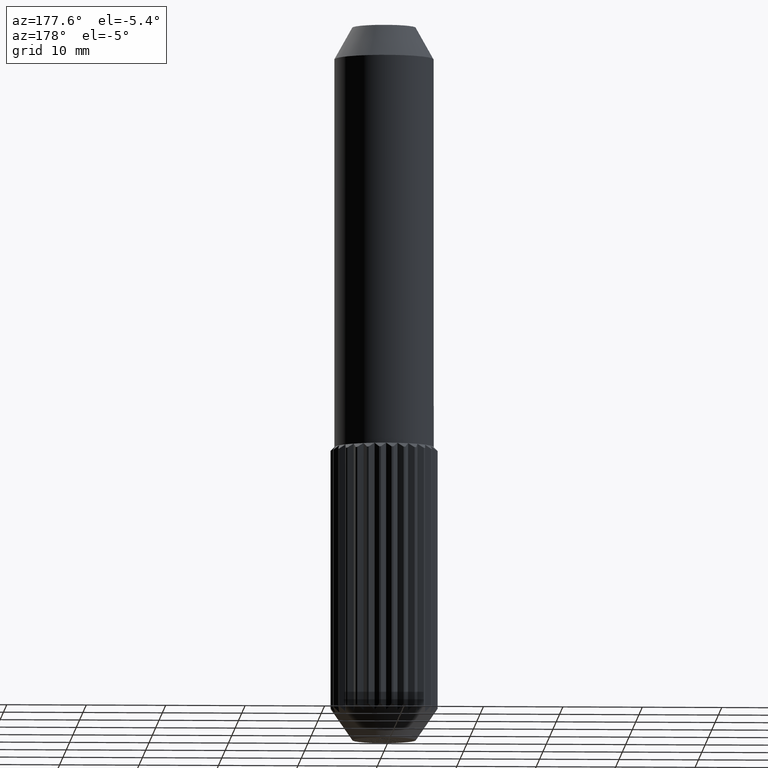
[diagram: clean part render]
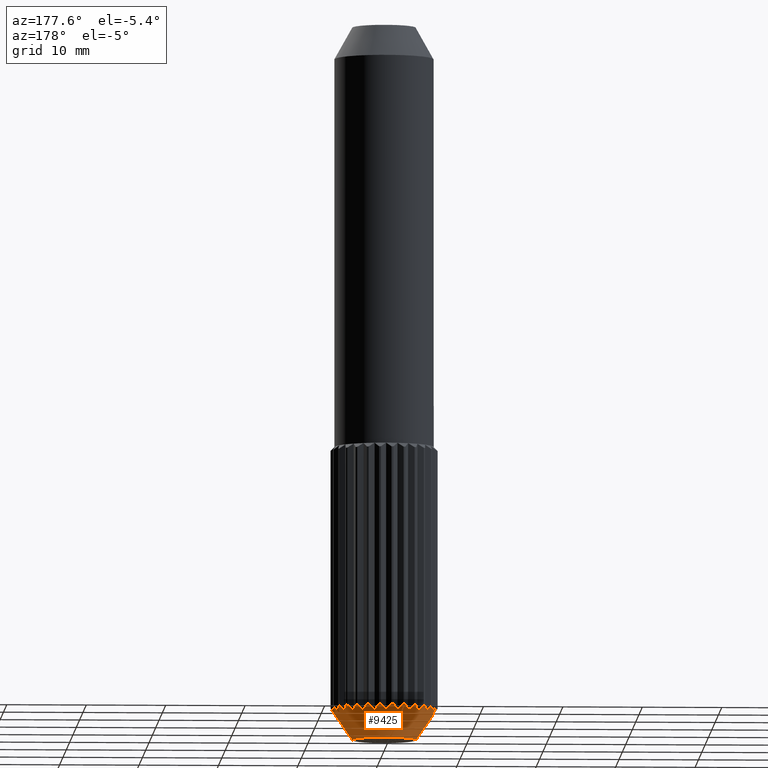
[diagram: same view with one face highlighted and labeled with its STEP entity id]
A machine part, auxiliary view. The second image highlights one B-rep face of the part: STEP entity #9425.
In plain terms, the highlighted conical surface has half-angle 34.509 deg.
Its self-contained STEP definition (entity closure, byte-faithful):
#88 = ORIENTED_EDGE ( 'NONE', *, *, #15348, .F. ) ;
#131 = FACE_OUTER_BOUND ( 'NONE', #14478, .T. ) ;
#158 = DIRECTION ( 'NONE',  ( 1.000000000000000000, 0.000000000000000000, 0.000000000000000000 ) ) ;
#176 = CARTESIAN_POINT ( 'NONE',  ( 6.155111586169130788, 1.084943022377921507, -41.72727272727274084 ) ) ;
#192 = CARTESIAN_POINT ( 'NONE',  ( -6.431662733293456391, 2.048466373940307950, -41.00000000000001421 ) ) ;
#209 = DIRECTION ( 'NONE',  ( -0.000000000000000000, -0.000000000000000000, 1.000000000000000000 ) ) ;
#231 = ORIENTED_EDGE ( 'NONE', *, *, #1555, .T. ) ;
#235 = CARTESIAN_POINT ( 'NONE',  ( 5.278868541234341016, 3.643994557223654063, -41.49402344601444526 ) ) ;
#242 = CARTESIAN_POINT ( 'NONE',  ( 0.000000000000000000, 0.000000000000000000, -41.00000000000001421 ) ) ;
#306 = CARTESIAN_POINT ( 'NONE',  ( -1.440995380601995279, 6.081614285128885022, -41.72727272727274084 ) ) ;
#413 = CARTESIAN_POINT ( 'NONE',  ( 1.076132967150270181, 6.492282423949667702, -41.25045262597865303 ) ) ;
#432 = EDGE_CURVE ( 'NONE', #15131, #4489, #6552, .T. ) ;
#438 = B_SPLINE_CURVE_WITH_KNOTS ( 'NONE', 3,
 ( #9093, #6719, #7918, #6875 ),
 .UNSPECIFIED., .F., .F.,
 ( 4, 4 ),
 ( 2.905852122076681322E-07, 0.001091966129157631409 ),
 .UNSPECIFIED. ) ;
#445 = AXIS2_PLACEMENT_3D ( 'NONE', #525, #8792, #1695 ) ;
#479 = CARTESIAN_POINT ( 'NONE',  ( -4.295658730959527105, 4.763660932309165652, -41.49402344578039248 ) ) ;
#525 = CARTESIAN_POINT ( 'NONE',  ( 0.000000000000000000, 0.000000000000000000, -41.00000000000001421 ) ) ;
#629 = ORIENTED_EDGE ( 'NONE', *, *, #4733, .T. ) ;
#657 = AXIS2_PLACEMENT_3D ( 'NONE', #10800, #8591, #12137 ) ;
#712 = CARTESIAN_POINT ( 'NONE',  ( -0.6665166516910940864, 6.717012397861008566, -41.00000000000001421 ) ) ;
#716 = CARTESIAN_POINT ( 'NONE',  ( 6.672745789829638952, 0.1842152806137181131, -41.10950831084119272 ) ) ;
#729 = ORIENTED_EDGE ( 'NONE', *, *, #13564, .T. ) ;
#771 = VERTEX_POINT ( 'NONE', #5398 ) ;
#803 = DIRECTION ( 'NONE',  ( 1.000000000000000000, 0.000000000000000000, 0.000000000000000000 ) ) ;
#890 = CARTESIAN_POINT ( 'NONE',  ( -5.785887575417752338, 3.476493199278043900, -41.00000000000001421 ) ) ;
#898 = ORIENTED_EDGE ( 'NONE', *, *, #10878, .T. ) ;
#982 = CARTESIAN_POINT ( 'NONE',  ( -5.278444507481738768, 3.644608756800490568, -41.49402344601426762 ) ) ;
#1027 = CARTESIAN_POINT ( 'NONE',  ( 6.352790982991042057, 0.8872406231755075590, -41.49402346886903814 ) ) ;
#1057 = EDGE_CURVE ( 'NONE', #15067, #9446, #13966, .T. ) ;
#1119 = CARTESIAN_POINT ( 'NONE',  ( -2.804669937508656563, 5.585367180556280786, -41.72727272727274084 ) ) ;
#1139 = B_SPLINE_CURVE_WITH_KNOTS ( 'NONE', 3,
 ( #9388, #12932, #15345, #3526 ),
 .UNSPECIFIED., .F., .F.,
 ( 4, 4 ),
 ( 2.851714468385349928E-07, 0.001091960715392950717 ),
 .UNSPECIFIED. ) ;
#1150 = CARTESIAN_POINT ( 'NONE',  ( -6.599940473221521664, 0.09293051136745567042, -41.21826840258691504 ) ) ;
#1275 = CARTESIAN_POINT ( 'NONE',  ( 3.349452180905207577, 5.664712126195611930, -41.25045260883878484 ) ) ;
#1309 = CIRCLE ( 'NONE', #657, 6.750000000000000000 ) ;
#1320 = ORIENTED_EDGE ( 'NONE', *, *, #8510, .T. ) ;
#1360 = DIRECTION ( 'NONE',  ( 1.000000000000000000, 0.000000000000000000, 0.000000000000000000 ) ) ;
#1389 = CIRCLE ( 'NONE', #10712, 6.750000000000000000 ) ;
#1464 = CARTESIAN_POINT ( 'NONE',  ( 5.903675214367467561, 3.272479024113560175, -41.00000000000001421 ) ) ;
#1478 = VERTEX_POINT ( 'NONE', #10727 ) ;
#1483 = CARTESIAN_POINT ( 'NONE',  ( -1.700813732123253930, 6.184851013269891951, -41.49402344612072824 ) ) ;
#1555 = EDGE_CURVE ( 'NONE', #3863, #2751, #12590, .T. ) ;
#1609 = CARTESIAN_POINT ( 'NONE',  ( 1.441702998799983204, 6.081446576535155302, -41.72727272727274084 ) ) ;
#1614 = VERTEX_POINT ( 'NONE', #1980 ) ;
#1695 = DIRECTION ( 'NONE',  ( 1.000000000000000000, 0.000000000000000000, 0.000000000000000000 ) ) ;
#1875 = CARTESIAN_POINT ( 'NONE',  ( -5.795226128462058313, 2.749636981514910428, -41.49402344586175673 ) ) ;
#1880 = CARTESIAN_POINT ( 'NONE',  ( 6.527069812822589689, 8.351430862166876214E-14, -41.32426209043992316 ) ) ;
#1980 = CARTESIAN_POINT ( 'NONE',  ( -5.013052813243788819, 3.732532852049468719, -41.72727272727274084 ) ) ;
#1991 = B_SPLINE_CURVE_WITH_KNOTS ( 'NONE', 3,
 ( #9800, #413, #7856, #10171 ),
 .UNSPECIFIED., .F., .F.,
 ( 4, 4 ),
 ( 2.905851981662305944E-07, 0.001091966129139847240 ),
 .UNSPECIFIED. ) ;
#2002 = ORIENTED_EDGE ( 'NONE', *, *, #4120, .T. ) ;
#2051 = VERTEX_POINT ( 'NONE', #15160 ) ;
#2064 = VERTEX_POINT ( 'NONE', #4440 ) ;
#2109 = CARTESIAN_POINT ( 'NONE',  ( -5.535083815204567159, 3.559584321496866988, -41.25045260902820132 ) ) ;
#2203 = EDGE_CURVE ( 'NONE', #2051, #9446, #8560, .T. ) ;
#2234 = DIRECTION ( 'NONE',  ( 1.000000000000000000, 0.000000000000000000, 0.000000000000000000 ) ) ;
#2258 = VERTEX_POINT ( 'NONE', #4881 ) ;
#2295 = AXIS2_PLACEMENT_3D ( 'NONE', #13318, #5422, #803 ) ;
#2335 = CIRCLE ( 'NONE', #11545, 6.750000000000000000 ) ;
#2338 = CARTESIAN_POINT ( 'NONE',  ( -4.997026153061551845, 4.282233413868573813, -41.25045260879346642 ) ) ;
#2366 = CARTESIAN_POINT ( 'NONE',  ( -6.154985305650852112, 1.085659194785403958, -41.72727272727274084 ) ) ;
#2392 = AXIS2_PLACEMENT_3D ( 'NONE', #5913, #12764, #11732 ) ;
#2427 = CARTESIAN_POINT ( 'NONE',  ( -6.730705288443459722, 0.5100061961576916048, -41.00000000000001421 ) ) ;
#2440 = EDGE_CURVE ( 'NONE', #7017, #9683, #7179, .T. ) ;
#2472 = EDGE_CURVE ( 'NONE', #5996, #2258, #2692, .T. ) ;
#2525 = AXIS2_PLACEMENT_3D ( 'NONE', #7029, #14179, #2234 ) ;
#2537 = CARTESIAN_POINT ( 'NONE',  ( 5.786292044602241447, 3.475819957157277429, -41.00000000000001421 ) ) ;
#2591 = CARTESIAN_POINT ( 'NONE',  ( -1.952063501244514443, 6.284683084247141061, -41.25045260912823153 ) ) ;
#2620 = VERTEX_POINT ( 'NONE', #3020 ) ;
#2632 = CARTESIAN_POINT ( 'NONE',  ( 5.850232356961887703, 3.013731035442785977, -41.25045260888501986 ) ) ;
#2692 = B_SPLINE_CURVE_WITH_KNOTS ( 'NONE', 3,
 ( #10201, #12433, #10251, #11378 ),
 .UNSPECIFIED., .F., .F.,
 ( 4, 4 ),
 ( 2.905852208846841789E-07, 0.001091966129167168701 ),
 .UNSPECIFIED. ) ;
#2715 = VERTEX_POINT ( 'NONE', #4259 ) ;
#2734 = ORIENTED_EDGE ( 'NONE', *, *, #11631, .T. ) ;
#2739 = CARTESIAN_POINT ( 'NONE',  ( 5.795546024022234732, 2.748962657724313363, -41.49402344586187041 ) ) ;
#2751 = VERTEX_POINT ( 'NONE', #7627 ) ;
#2820 = DIRECTION ( 'NONE',  ( -0.000000000000000000, -0.000000000000000000, 1.000000000000000000 ) ) ;
#2843 = DIRECTION ( 'NONE',  ( 1.000000000000000000, 0.000000000000000000, 0.000000000000000000 ) ) ;
#2861 = DIRECTION ( 'NONE',  ( 1.000000000000000000, 0.000000000000000000, 0.000000000000000000 ) ) ;
#3019 = EDGE_CURVE ( 'NONE', #5996, #6633, #1309, .T. ) ;
#3020 = CARTESIAN_POINT ( 'NONE',  ( -4.017144012122470187, 4.788011485561473712, -41.72727272727274084 ) ) ;
#3045 = CIRCLE ( 'NONE', #11186, 6.750000000000000000 ) ;
#3064 = AXIS2_PLACEMENT_3D ( 'NONE', #8004, #13806, #7903 ) ;
#3117 = VERTEX_POINT ( 'NONE', #176 ) ;
#3138 = EDGE_CURVE ( 'NONE', #11959, #2620, #10125, .T. ) ;
#3187 = CARTESIAN_POINT ( 'NONE',  ( 0.000000000000000000, 0.000000000000000000, -41.00000000000001421 ) ) ;
#3229 = ORIENTED_EDGE ( 'NONE', *, *, #13582, .T. ) ;
#3318 = ORIENTED_EDGE ( 'NONE', *, *, #8391, .T. ) ;
#3445 = ORIENTED_EDGE ( 'NONE', *, *, #13484, .F. ) ;
#3484 = CARTESIAN_POINT ( 'NONE',  ( -4.989326329455886722, 4.546330693889112595, -41.00000000000001421 ) ) ;
#3526 = CARTESIAN_POINT ( 'NONE',  ( 4.017701095361697838, 4.787544037220902382, -41.72727272727274084 ) ) ;
#3579 = DIRECTION ( 'NONE',  ( 1.000000000000000000, 0.000000000000000000, 0.000000000000000000 ) ) ;
#3676 = CARTESIAN_POINT ( 'NONE',  ( -5.013052813243788819, 3.732532852049468719, -41.72727272727274084 ) ) ;
#3688 = DIRECTION ( 'NONE',  ( -0.000000000000000000, -0.000000000000000000, 1.000000000000000000 ) ) ;
#3694 = EDGE_CURVE ( 'NONE', #14129, #2064, #9075, .T. ) ;
#3722 = CARTESIAN_POINT ( 'NONE',  ( 5.013487079226120358, 3.731949531603121706, -41.72727272727274084 ) ) ;
#3842 = CARTESIAN_POINT ( 'NONE',  ( 3.610874290203654802, 5.702989291621215706, -41.00000000000001421 ) ) ;
#3863 = VERTEX_POINT ( 'NONE', #1609 ) ;
#3878 = CARTESIAN_POINT ( 'NONE',  ( 0.000000000000000000, 0.000000000000000000, -41.00000000000001421 ) ) ;
#3918 = EDGE_CURVE ( 'NONE', #12799, #11810, #8521, .T. ) ;
#3928 = DIRECTION ( 'NONE',  ( -0.000000000000000000, -0.000000000000000000, 1.000000000000000000 ) ) ;
#4028 = B_SPLINE_CURVE_WITH_KNOTS ( 'NONE', 3,
 ( #10511, #1150, #14058, #11744 ),
 .UNSPECIFIED., .F., .F.,
 ( 4, 4 ),
 ( 0.0006133775153104287876, 0.001092007384889223448 ),
 .UNSPECIFIED. ) ;
#4044 = CARTESIAN_POINT ( 'NONE',  ( -6.499014349564416371, 1.823543935351108480, -41.00000000000001421 ) ) ;
#4060 = CARTESIAN_POINT ( 'NONE',  ( 6.431901039640829154, 2.047718002134870652, -41.00000000000001421 ) ) ;
#4096 = B_SPLINE_CURVE_WITH_KNOTS ( 'NONE', 3,
 ( #11802, #14226, #15199, #14063 ),
 .UNSPECIFIED., .F., .F.,
 ( 4, 4 ),
 ( 3.058602433941723889E-07, 0.001091981404188320732 ),
 .UNSPECIFIED. ) ;
#4120 = EDGE_CURVE ( 'NONE', #14129, #2715, #12588, .T. ) ;
#4211 = CARTESIAN_POINT ( 'NONE',  ( -0.4500977066353996081, 6.565455456490031594, -41.25045261894504733 ) ) ;
#4212 = EDGE_CURVE ( 'NONE', #7447, #3863, #1991, .T. ) ;
#4259 = CARTESIAN_POINT ( 'NONE',  ( 5.013487079226120358, 3.731949531603121706, -41.72727272727274084 ) ) ;
#4266 = CARTESIAN_POINT ( 'NONE',  ( -5.903294404180232213, 3.273165925762757222, -41.00000000000001421 ) ) ;
#4347 = CARTESIAN_POINT ( 'NONE',  ( -4.000000000000000000, 4.898587196589412829E-16, -45.00000000000000711 ) ) ;
#4375 = CARTESIAN_POINT ( 'NONE',  ( 3.610874290203654802, 5.702989291621215706, -41.00000000000001421 ) ) ;
#4440 = CARTESIAN_POINT ( 'NONE',  ( 4.828742547713271271, 4.716539558606875460, -41.00000000000001421 ) ) ;
#4489 = VERTEX_POINT ( 'NONE', #4060 ) ;
#4709 = B_SPLINE_CURVE_WITH_KNOTS ( 'NONE', 3,
 ( #11904, #8359, #8411, #11963 ),
 .UNSPECIFIED., .F., .F.,
 ( 4, 4 ),
 ( 2.613094446611643751E-07, 0.001091936853390788539 ),
 .UNSPECIFIED. ) ;
#4719 = ORIENTED_EDGE ( 'NONE', *, *, #5645, .T. ) ;
#4733 = EDGE_CURVE ( 'NONE', #14429, #1614, #14120, .T. ) ;
#4825 = CARTESIAN_POINT ( 'NONE',  ( -6.154985305650852112, 1.085659194785403958, -41.72727272727274084 ) ) ;
#4834 = VERTEX_POINT ( 'NONE', #10794 ) ;
#4840 = CARTESIAN_POINT ( 'NONE',  ( -2.543642831904508128, 6.069404788321794086, -41.25045261388653017 ) ) ;
#4881 = CARTESIAN_POINT ( 'NONE',  ( -2.804669937508656563, 5.585367180556280786, -41.72727272727274084 ) ) ;
#4948 = CARTESIAN_POINT ( 'NONE',  ( 6.527069812822589689, 8.351430862166876214E-14, -41.32426209043992316 ) ) ;
#5026 = ORIENTED_EDGE ( 'NONE', *, *, #14107, .F. ) ;
#5036 = CARTESIAN_POINT ( 'NONE',  ( 3.081947462725830089, 5.625544351222945494, -41.49402344581266533 ) ) ;
#5087 = ORIENTED_EDGE ( 'NONE', *, *, #14044, .T. ) ;
#5095 = CARTESIAN_POINT ( 'NONE',  ( 4.017701095361697838, 4.787544037220902382, -41.72727272727274084 ) ) ;
#5173 = DIRECTION ( 'NONE',  ( 1.000000000000000000, 0.000000000000000000, 0.000000000000000000 ) ) ;
#5220 = DIRECTION ( 'NONE',  ( 1.000000000000000000, 0.000000000000000000, 0.000000000000000000 ) ) ;
#5228 = CARTESIAN_POINT ( 'NONE',  ( -6.744370749156419542, 0.2756142193779260730, -41.00000000000001421 ) ) ;
#5241 = CARTESIAN_POINT ( 'NONE',  ( 5.013487079226120358, 3.731949531603121706, -41.72727272727274084 ) ) ;
#5258 = EDGE_CURVE ( 'NONE', #1478, #2751, #8218, .T. ) ;
#5331 = CIRCLE ( 'NONE', #11843, 6.750000000000000000 ) ;
#5355 = CARTESIAN_POINT ( 'NONE',  ( 5.786292044602241447, 3.475819957157277429, -41.00000000000001421 ) ) ;
#5398 = CARTESIAN_POINT ( 'NONE',  ( 0.6672982070589965620, 6.716934799657940047, -41.00000000000001421 ) ) ;
#5421 = CARTESIAN_POINT ( 'NONE',  ( -6.154985305650852112, 1.085659194785403958, -41.72727272727274084 ) ) ;
#5422 = DIRECTION ( 'NONE',  ( -0.000000000000000000, -0.000000000000000000, 1.000000000000000000 ) ) ;
#5424 = CARTESIAN_POINT ( 'NONE',  ( -2.418235372889145030, 6.301955068175884023, -41.00000000000001421 ) ) ;
#5427 = EDGE_CURVE ( 'NONE', #10825, #8768, #8747, .T. ) ;
#5459 = CARTESIAN_POINT ( 'NONE',  ( -0.6665166516910940864, 6.717012397861008566, -41.00000000000001421 ) ) ;
#5526 = DIRECTION ( 'NONE',  ( 0.5665288228870661857, 0.000000000000000000, 0.8240419241993669486 ) ) ;
#5558 = CARTESIAN_POINT ( 'NONE',  ( -0.2286432657586661144, 6.410372186383248128, -41.49402345656894653 ) ) ;
#5615 = CARTESIAN_POINT ( 'NONE',  ( -5.849881653831945805, 3.014411720484822865, -41.25045260888490617 ) ) ;
#5626 = ORIENTED_EDGE ( 'NONE', *, *, #10119, .T. ) ;
#5645 = EDGE_CURVE ( 'NONE', #9683, #771, #6179, .T. ) ;
#5746 = CARTESIAN_POINT ( 'NONE',  ( 6.155111586169130788, 1.084943022377921507, -41.72727272727274084 ) ) ;
#5851 = VERTEX_POINT ( 'NONE', #13682 ) ;
#5913 = CARTESIAN_POINT ( 'NONE',  ( 0.000000000000000000, 0.000000000000000000, -41.00000000000001421 ) ) ;
#5942 = EDGE_CURVE ( 'NONE', #3117, #10887, #13300, .T. ) ;
#5996 = VERTEX_POINT ( 'NONE', #12850 ) ;
#6099 = EDGE_CURVE ( 'NONE', #4834, #10887, #5331, .T. ) ;
#6179 = B_SPLINE_CURVE_WITH_KNOTS ( 'NONE', 3,
 ( #7152, #8237, #10653, #13013 ),
 .UNSPECIFIED., .F., .F.,
 ( 4, 4 ),
 ( 3.177709401919704234E-07, 0.001091993314884399892 ),
 .UNSPECIFIED. ) ;
#6237 = CIRCLE ( 'NONE', #10298, 6.750000000000000000 ) ;
#6350 = ORIENTED_EDGE ( 'NONE', *, *, #9397, .T. ) ;
#6367 = CARTESIAN_POINT ( 'NONE',  ( -0.8997206700173507876, 6.689768509892067172, -41.00000000000001421 ) ) ;
#6476 = DIRECTION ( 'NONE',  ( -0.000000000000000000, -0.000000000000000000, 1.000000000000000000 ) ) ;
#6511 = ORIENTED_EDGE ( 'NONE', *, *, #1057, .F. ) ;
#6552 = CIRCLE ( 'NONE', #2295, 6.750000000000000000 ) ;
#6557 = CARTESIAN_POINT ( 'NONE',  ( 0.0003636102605809703181, 6.249999989423007385, -41.72727272727274084 ) ) ;
#6568 = CARTESIAN_POINT ( 'NONE',  ( 6.744402772672461133, 0.2748294743436703325, -41.00000000000001421 ) ) ;
#6623 = ORIENTED_EDGE ( 'NONE', *, *, #6099, .F. ) ;
#6626 = EDGE_CURVE ( 'NONE', #2620, #6633, #13739, .T. ) ;
#6633 = VERTEX_POINT ( 'NONE', #10689 ) ;
#6719 = CARTESIAN_POINT ( 'NONE',  ( 2.544349021996777704, 6.069108780958195837, -41.25045261388227402 ) ) ;
#6787 = EDGE_CURVE ( 'NONE', #14429, #10996, #2335, .T. ) ;
#6794 = CARTESIAN_POINT ( 'NONE',  ( 0.9004990538364304742, 6.689663777353815455, -41.00000000000001421 ) ) ;
#6812 = VERTEX_POINT ( 'NONE', #4948 ) ;
#6869 = VERTEX_POINT ( 'NONE', #5095 ) ;
#6875 = CARTESIAN_POINT ( 'NONE',  ( 2.805319805503160069, 5.585040804582516394, -41.72727272727274084 ) ) ;
#6884 = CARTESIAN_POINT ( 'NONE',  ( 6.730764584796848027, 0.5092230395853187819, -41.00000000000001421 ) ) ;
#7008 = B_SPLINE_CURVE_WITH_KNOTS ( 'NONE', 3,
 ( #7974, #10483, #15014, #7920 ),
 .UNSPECIFIED., .F., .F.,
 ( 4, 4 ),
 ( 2.905852144565006378E-07, 0.001091966129160213978 ),
 .UNSPECIFIED. ) ;
#7017 = VERTEX_POINT ( 'NONE', #712 ) ;
#7029 = CARTESIAN_POINT ( 'NONE',  ( 0.000000000000000000, 0.000000000000000000, -41.00000000000001421 ) ) ;
#7041 = CARTESIAN_POINT ( 'NONE',  ( 6.543951107868884343, 0.6960582545130339360, -41.25045263050181887 ) ) ;
#7055 = ORIENTED_EDGE ( 'NONE', *, *, #3019, .F. ) ;
#7152 = CARTESIAN_POINT ( 'NONE',  ( 0.0003636102605809703181, 6.249999989423007385, -41.72727272727274084 ) ) ;
#7171 = EDGE_CURVE ( 'NONE', #10649, #7701, #12618, .T. ) ;
#7179 = B_SPLINE_CURVE_WITH_KNOTS ( 'NONE', 3,
 ( #5459, #4211, #5558, #6557 ),
 .UNSPECIFIED., .F., .F.,
 ( 4, 4 ),
 ( 2.905852063309987016E-07, 0.001091966129150540726 ),
 .UNSPECIFIED. ) ;
#7250 = ORIENTED_EDGE ( 'NONE', *, *, #3138, .T. ) ;
#7327 = ORIENTED_EDGE ( 'NONE', *, *, #3918, .T. ) ;
#7381 = CARTESIAN_POINT ( 'NONE',  ( 0.000000000000000000, 0.000000000000000000, -41.00000000000001421 ) ) ;
#7388 = EDGE_CURVE ( 'NONE', #2715, #8561, #14931, .T. ) ;
#7431 = DIRECTION ( 'NONE',  ( -0.000000000000000000, -0.000000000000000000, 1.000000000000000000 ) ) ;
#7447 = VERTEX_POINT ( 'NONE', #6794 ) ;
#7464 = DIRECTION ( 'NONE',  ( -0.000000000000000000, -0.000000000000000000, 1.000000000000000000 ) ) ;
#7465 = B_SPLINE_CURVE_WITH_KNOTS ( 'NONE', 3,
 ( #5421, #8838, #8890, #13602 ),
 .UNSPECIFIED., .F., .F.,
 ( 4, 4 ),
 ( 2.872164367678219622E-07, 0.001091962760382523146 ),
 .UNSPECIFIED. ) ;
#7627 = CARTESIAN_POINT ( 'NONE',  ( 2.198342865069189855, 6.381989395760494510, -41.00000000000001421 ) ) ;
#7637 = ORIENTED_EDGE ( 'NONE', *, *, #10740, .T. ) ;
#7701 = VERTEX_POINT ( 'NONE', #2366 ) ;
#7740 = CARTESIAN_POINT ( 'NONE',  ( 2.198342865069189855, 6.381989395760494510, -41.00000000000001421 ) ) ;
#7855 = AXIS2_PLACEMENT_3D ( 'NONE', #10761, #9620, #1360 ) ;
#7856 = CARTESIAN_POINT ( 'NONE',  ( 1.255853412571542593, 6.290308533586819628, -41.49402346405494768 ) ) ;
#7903 = DIRECTION ( 'NONE',  ( 1.000000000000000000, 0.000000000000000000, 0.000000000000000000 ) ) ;
#7904 = CIRCLE ( 'NONE', #12658, 6.750000000000000000 ) ;
#7918 = CARTESIAN_POINT ( 'NONE',  ( 2.672646693691622222, 5.831132738289357853, -41.49402345118054569 ) ) ;
#7920 = CARTESIAN_POINT ( 'NONE',  ( 6.155111586169130788, 1.084943022377921507, -41.72727272727274084 ) ) ;
#7974 = CARTESIAN_POINT ( 'NONE',  ( 6.499226484541828164, 1.822787728351845660, -41.00000000000001421 ) ) ;
#8004 = CARTESIAN_POINT ( 'NONE',  ( 0.000000000000000000, 0.000000000000000000, -45.00000000000000711 ) ) ;
#8090 = B_SPLINE_CURVE_WITH_KNOTS ( 'NONE', 3,
 ( #12541, #1875, #5615, #4266 ),
 .UNSPECIFIED., .F., .F.,
 ( 4, 4 ),
 ( 2.658018974353003004E-07, 0.001091941345843553367 ),
 .UNSPECIFIED. ) ;
#8098 = EDGE_CURVE ( 'NONE', #1478, #2051, #438, .T. ) ;
#8104 = AXIS2_PLACEMENT_3D ( 'NONE', #242, #13254, #3579 ) ;
#8218 = CIRCLE ( 'NONE', #2525, 6.750000000000000000 ) ;
#8237 = CARTESIAN_POINT ( 'NONE',  ( 0.2293891448882207917, 6.410345539142080717, -41.49402345656261559 ) ) ;
#8251 = ORIENTED_EDGE ( 'NONE', *, *, #432, .F. ) ;
#8313 = EDGE_CURVE ( 'NONE', #7701, #8768, #7465, .T. ) ;
#8337 = CARTESIAN_POINT ( 'NONE',  ( -1.440995380601995279, 6.081614285128885022, -41.72727272727274084 ) ) ;
#8359 = CARTESIAN_POINT ( 'NONE',  ( 4.296212978997838938, 4.763161077474447502, -41.49402344578043511 ) ) ;
#8391 = EDGE_CURVE ( 'NONE', #4834, #6812, #9831, .T. ) ;
#8406 = ORIENTED_EDGE ( 'NONE', *, *, #11647, .T. ) ;
#8411 = CARTESIAN_POINT ( 'NONE',  ( 4.565539783401891150, 4.739582246493559303, -41.25045260880851572 ) ) ;
#8510 = EDGE_CURVE ( 'NONE', #5851, #4489, #4096, .T. ) ;
#8515 = CARTESIAN_POINT ( 'NONE',  ( 5.903675214367467561, 3.272479024113560175, -41.00000000000001421 ) ) ;
#8521 = LINE ( 'NONE', #4347, #10724 ) ;
#8560 = B_SPLINE_CURVE_WITH_KNOTS ( 'NONE', 3,
 ( #10776, #5036, #1275, #3842 ),
 .UNSPECIFIED., .F., .F.,
 ( 4, 4 ),
 ( 2.630893179594336562E-07, 0.001091938633264083946 ),
 .UNSPECIFIED. ) ;
#8561 = VERTEX_POINT ( 'NONE', #2537 ) ;
#8565 = VERTEX_POINT ( 'NONE', #1464 ) ;
#8591 = DIRECTION ( 'NONE',  ( -0.000000000000000000, -0.000000000000000000, 1.000000000000000000 ) ) ;
#8626 = CARTESIAN_POINT ( 'NONE',  ( -1.440995380601995279, 6.081614285128885022, -41.72727272727274084 ) ) ;
#8705 = EDGE_CURVE ( 'NONE', #11959, #10398, #7904, .T. ) ;
#8737 = EDGE_CURVE ( 'NONE', #10649, #11383, #6237, .T. ) ;
#8747 = CIRCLE ( 'NONE', #8104, 6.750000000000000000 ) ;
#8753 = CARTESIAN_POINT ( 'NONE',  ( 5.005371913931192296, 4.011408906388669315, -41.49402344576441237 ) ) ;
#8760 = DIRECTION ( 'NONE',  ( 1.000000000000000000, 0.000000000000000000, 0.000000000000000000 ) ) ;
#8768 = VERTEX_POINT ( 'NONE', #4044 ) ;
#8792 = DIRECTION ( 'NONE',  ( -0.000000000000000000, -0.000000000000000000, 1.000000000000000000 ) ) ;
#8838 = CARTESIAN_POINT ( 'NONE',  ( -6.273124983227511109, 1.339049037536794051, -41.49402344910036788 ) ) ;
#8890 = CARTESIAN_POINT ( 'NONE',  ( -6.387368519099565489, 1.584082308185417620, -41.25045261192780544 ) ) ;
#8941 = CARTESIAN_POINT ( 'NONE',  ( -4.989326329455886722, 4.546330693889112595, -41.00000000000001421 ) ) ;
#8980 = CARTESIAN_POINT ( 'NONE',  ( 1.701533360701457998, 6.184653072739553892, -41.49402344612049376 ) ) ;
#8987 = VERTEX_POINT ( 'NONE', #12649 ) ;
#8996 = CONICAL_SURFACE ( 'NONE', #3064, 4.000000000000000000, 0.6022873461349653734 ) ;
#9075 = CIRCLE ( 'NONE', #14054, 6.750000000000000000 ) ;
#9093 = CARTESIAN_POINT ( 'NONE',  ( 2.418968622286134629, 6.301673651054546355, -41.00000000000001421 ) ) ;
#9221 = EDGE_CURVE ( 'NONE', #8987, #11698, #14834, .T. ) ;
#9258 = ORIENTED_EDGE ( 'NONE', *, *, #5258, .F. ) ;
#9328 = CARTESIAN_POINT ( 'NONE',  ( -6.730705288443459722, 0.5100061961576916048, -41.00000000000001421 ) ) ;
#9388 = CARTESIAN_POINT ( 'NONE',  ( 3.807030966181707221, 5.573958667099494946, -41.00000000000001421 ) ) ;
#9397 = EDGE_CURVE ( 'NONE', #13946, #10996, #8090, .T. ) ;
#9398 = CARTESIAN_POINT ( 'NONE',  ( -6.206781545956951973, 2.187157095725072331, -41.25045261620093129 ) ) ;
#9425 = ADVANCED_FACE ( 'NONE', ( #131 ), #8996, .T. ) ;
#9446 = VERTEX_POINT ( 'NONE', #4375 ) ;
#9556 = EDGE_CURVE ( 'NONE', #6869, #2064, #4709, .T. ) ;
#9568 = B_SPLINE_CURVE_WITH_KNOTS ( 'NONE', 3,
 ( #8515, #2632, #2739, #12007 ),
 .UNSPECIFIED., .F., .F.,
 ( 4, 4 ),
 ( 2.812729697956470055E-07, 0.001091956816915917337 ),
 .UNSPECIFIED. ) ;
#9620 = DIRECTION ( 'NONE',  ( -0.000000000000000000, -0.000000000000000000, 1.000000000000000000 ) ) ;
#9648 = CARTESIAN_POINT ( 'NONE',  ( -1.075377548511355918, 6.492407593751248207, -41.25045262598693085 ) ) ;
#9683 = VERTEX_POINT ( 'NONE', #14728 ) ;
#9690 = CARTESIAN_POINT ( 'NONE',  ( -2.418235372889145030, 6.301955068175884023, -41.00000000000001421 ) ) ;
#9800 = CARTESIAN_POINT ( 'NONE',  ( 0.9004990538364304742, 6.689663777353815455, -41.00000000000001421 ) ) ;
#9809 = CARTESIAN_POINT ( 'NONE',  ( -4.017144012122470187, 4.788011485561473712, -41.72727272727274084 ) ) ;
#9819 = ORIENTED_EDGE ( 'NONE', *, *, #10010, .F. ) ;
#9831 = B_SPLINE_CURVE_WITH_KNOTS ( 'NONE', 3,
 ( #6568, #716, #12338, #1880 ),
 .UNSPECIFIED., .F., .F.,
 ( 4, 4 ),
 ( 2.905852025823240034E-07, 0.0004776165711147505326 ),
 .UNSPECIFIED. ) ;
#9850 = CARTESIAN_POINT ( 'NONE',  ( 0.000000000000000000, 0.000000000000000000, -45.00000000000000711 ) ) ;
#10010 = EDGE_CURVE ( 'NONE', #8565, #8561, #3045, .T. ) ;
#10105 = CARTESIAN_POINT ( 'NONE',  ( -5.903294404180232213, 3.273165925762757222, -41.00000000000001421 ) ) ;
#10119 = EDGE_CURVE ( 'NONE', #15131, #3117, #7008, .T. ) ;
#10125 = B_SPLINE_CURVE_WITH_KNOTS ( 'NONE', 3,
 ( #13560, #13619, #479, #9809 ),
 .UNSPECIFIED., .F., .F.,
 ( 4, 4 ),
 ( 2.765095077126394084E-07, 0.001091952053453838127 ),
 .UNSPECIFIED. ) ;
#10159 = CARTESIAN_POINT ( 'NONE',  ( 1.952794744110786906, 6.284455908802954127, -41.25045260912801837 ) ) ;
#10171 = CARTESIAN_POINT ( 'NONE',  ( 1.441702998799983204, 6.081446576535155302, -41.72727272727274084 ) ) ;
#10201 = CARTESIAN_POINT ( 'NONE',  ( -3.610210692826518297, 5.703409397316757001, -41.00000000000001421 ) ) ;
#10244 = ORIENTED_EDGE ( 'NONE', *, *, #4212, .T. ) ;
#10251 = CARTESIAN_POINT ( 'NONE',  ( -3.081292883144949091, 5.625902914464413485, -41.49402344320898095 ) ) ;
#10294 = DIRECTION ( 'NONE',  ( -0.5665288228870661857, 6.937977095733633603E-17, 0.8240419241993669486 ) ) ;
#10298 = AXIS2_PLACEMENT_3D ( 'NONE', #12261, #3928, #8760 ) ;
#10386 = ORIENTED_EDGE ( 'NONE', *, *, #7388, .T. ) ;
#10394 = CARTESIAN_POINT ( 'NONE',  ( -5.013052813243788819, 3.732532852049468719, -41.72727272727274084 ) ) ;
#10398 = VERTEX_POINT ( 'NONE', #8941 ) ;
#10448 = CARTESIAN_POINT ( 'NONE',  ( -3.874779678970249552, 5.319198795244101774, -41.25045260894781762 ) ) ;
#10464 = VERTEX_POINT ( 'NONE', #5424 ) ;
#10483 = CARTESIAN_POINT ( 'NONE',  ( 6.387552792205699603, 1.583339093385941254, -41.25045261193137947 ) ) ;
#10496 = VERTEX_POINT ( 'NONE', #13664 ) ;
#10504 = EDGE_CURVE ( 'NONE', #10496, #6812, #14916, .T. ) ;
#10511 = CARTESIAN_POINT ( 'NONE',  ( -6.526469338079078142, 8.901179129775104603E-14, -41.32513550824866400 ) ) ;
#10548 = CARTESIAN_POINT ( 'NONE',  ( -4.017144012122470187, 4.788011485561473712, -41.72727272727274084 ) ) ;
#10649 = VERTEX_POINT ( 'NONE', #9328 ) ;
#10653 = CARTESIAN_POINT ( 'NONE',  ( 0.4508616290226035161, 6.565403040804127954, -41.25045261893910009 ) ) ;
#10685 = EDGE_CURVE ( 'NONE', #1614, #10398, #15228, .T. ) ;
#10689 = CARTESIAN_POINT ( 'NONE',  ( -3.806382380871587756, 5.574401597534065722, -41.00000000000001421 ) ) ;
#10693 = DIRECTION ( 'NONE',  ( 1.000000000000000000, 0.000000000000000000, 0.000000000000000000 ) ) ;
#10712 = AXIS2_PLACEMENT_3D ( 'NONE', #3187, #13978, #12597 ) ;
#10724 = VECTOR ( 'NONE', #10294, 1000.000000000000000 ) ;
#10727 = CARTESIAN_POINT ( 'NONE',  ( 2.418968622286134629, 6.301673651054546355, -41.00000000000001421 ) ) ;
#10740 = EDGE_CURVE ( 'NONE', #15067, #6869, #1139, .T. ) ;
#10761 = CARTESIAN_POINT ( 'NONE',  ( 0.000000000000000000, 0.000000000000000000, -41.00000000000001421 ) ) ;
#10776 = CARTESIAN_POINT ( 'NONE',  ( 2.805319805503160069, 5.585040804582516394, -41.72727272727274084 ) ) ;
#10794 = CARTESIAN_POINT ( 'NONE',  ( 6.744402772672461133, 0.2748294743436703325, -41.00000000000001421 ) ) ;
#10800 = CARTESIAN_POINT ( 'NONE',  ( 0.000000000000000000, 0.000000000000000000, -41.00000000000001421 ) ) ;
#10802 = CIRCLE ( 'NONE', #7855, 6.750000000000000000 ) ;
#10825 = VERTEX_POINT ( 'NONE', #192 ) ;
#10867 = CARTESIAN_POINT ( 'NONE',  ( 6.730764584796848027, 0.5092230395853187819, -41.00000000000001421 ) ) ;
#10878 = EDGE_CURVE ( 'NONE', #8565, #5851, #9568, .T. ) ;
#10887 = VERTEX_POINT ( 'NONE', #10867 ) ;
#10947 = B_SPLINE_CURVE_WITH_KNOTS ( 'NONE', 3,
 ( #15256, #9398, #11713, #14331 ),
 .UNSPECIFIED., .F., .F.,
 ( 4, 4 ),
 ( 2.905852095168706695E-07, 0.001091966129154445155 ),
 .UNSPECIFIED. ) ;
#10996 = VERTEX_POINT ( 'NONE', #10105 ) ;
#11102 = CARTESIAN_POINT ( 'NONE',  ( 0.000000000000000000, 0.000000000000000000, -41.00000000000001421 ) ) ;
#11167 = CARTESIAN_POINT ( 'NONE',  ( 5.535497954177691859, 3.558940261156242180, -41.25045260902837896 ) ) ;
#11186 = AXIS2_PLACEMENT_3D ( 'NONE', #11102, #2820, #5173 ) ;
#11239 = CIRCLE ( 'NONE', #14305, 4.000000000000000000 ) ;
#11378 = CARTESIAN_POINT ( 'NONE',  ( -2.804669937508656563, 5.585367180556280786, -41.72727272727274084 ) ) ;
#11383 = VERTEX_POINT ( 'NONE', #5228 ) ;
#11544 = ORIENTED_EDGE ( 'NONE', *, *, #8705, .F. ) ;
#11545 = AXIS2_PLACEMENT_3D ( 'NONE', #7381, #3688, #158 ) ;
#11582 = CARTESIAN_POINT ( 'NONE',  ( -3.944768403316778915, 5.058058091174628679, -41.49402344592871117 ) ) ;
#11627 = CARTESIAN_POINT ( 'NONE',  ( -5.785887575417752338, 3.476493199278043900, -41.00000000000001421 ) ) ;
#11631 = EDGE_CURVE ( 'NONE', #11698, #14645, #13015, .T. ) ;
#11635 = CARTESIAN_POINT ( 'NONE',  ( -3.806382380871587756, 5.574401597534065722, -41.00000000000001421 ) ) ;
#11647 = EDGE_CURVE ( 'NONE', #10496, #12799, #11239, .T. ) ;
#11698 = VERTEX_POINT ( 'NONE', #306 ) ;
#11713 = CARTESIAN_POINT ( 'NONE',  ( -5.976667966822126310, 2.329074784619736160, -41.49402345364833167 ) ) ;
#11732 = DIRECTION ( 'NONE',  ( 1.000000000000000000, 0.000000000000000000, 0.000000000000000000 ) ) ;
#11744 = CARTESIAN_POINT ( 'NONE',  ( -6.744370749156419542, 0.2756142193779260730, -41.00000000000001421 ) ) ;
#11802 = CARTESIAN_POINT ( 'NONE',  ( 5.738994676956694185, 2.475164660757488644, -41.72727272727274084 ) ) ;
#11810 = VERTEX_POINT ( 'NONE', #13542 ) ;
#11826 = CARTESIAN_POINT ( 'NONE',  ( -4.000000000000000000, 6.582476545417022102E-16, -45.00000000000000711 ) ) ;
#11843 = AXIS2_PLACEMENT_3D ( 'NONE', #14249, #209, #10693 ) ;
#11903 = CARTESIAN_POINT ( 'NONE',  ( -6.543870073523074815, 0.6968196730783229320, -41.25045263049199207 ) ) ;
#11904 = CARTESIAN_POINT ( 'NONE',  ( 4.017701095361697838, 4.787544037220902382, -41.72727272727274084 ) ) ;
#11942 = ORIENTED_EDGE ( 'NONE', *, *, #6787, .F. ) ;
#11959 = VERTEX_POINT ( 'NONE', #14432 ) ;
#11963 = CARTESIAN_POINT ( 'NONE',  ( 4.828742547713271271, 4.716539558606875460, -41.00000000000001421 ) ) ;
#11966 = CARTESIAN_POINT ( 'NONE',  ( 3.807030966181707221, 5.573958667099494946, -41.00000000000001421 ) ) ;
#11975 = CARTESIAN_POINT ( 'NONE',  ( -2.671968192501157802, 5.831443675374977431, -41.49402345118507185 ) ) ;
#12007 = CARTESIAN_POINT ( 'NONE',  ( 5.738994676956694185, 2.475164660757488644, -41.72727272727274084 ) ) ;
#12020 = CARTESIAN_POINT ( 'NONE',  ( -1.255121493446480274, 6.290454616177576064, -41.49402346406375841 ) ) ;
#12137 = DIRECTION ( 'NONE',  ( 1.000000000000000000, 0.000000000000000000, 0.000000000000000000 ) ) ;
#12138 = B_SPLINE_CURVE_WITH_KNOTS ( 'NONE', 3,
 ( #1119, #11975, #4840, #9690 ),
 .UNSPECIFIED., .F., .F.,
 ( 4, 4 ),
 ( 2.957523786447748550E-07, 0.001091971296324067888 ),
 .UNSPECIFIED. ) ;
#12261 = CARTESIAN_POINT ( 'NONE',  ( 0.000000000000000000, 0.000000000000000000, -41.00000000000001421 ) ) ;
#12291 = CARTESIAN_POINT ( 'NONE',  ( 0.000000000000000000, 0.000000000000000000, -41.00000000000001421 ) ) ;
#12338 = CARTESIAN_POINT ( 'NONE',  ( 6.600346768680700471, 0.09266273865644847341, -41.21767742737355888 ) ) ;
#12398 = ORIENTED_EDGE ( 'NONE', *, *, #9556, .T. ) ;
#12433 = CARTESIAN_POINT ( 'NONE',  ( -3.348793041601559217, 5.665101814680874703, -41.25045260639245726 ) ) ;
#12435 = CARTESIAN_POINT ( 'NONE',  ( 1.441702998799983204, 6.081446576535155302, -41.72727272727274084 ) ) ;
#12541 = CARTESIAN_POINT ( 'NONE',  ( -5.738706639622777494, 2.475832406353357662, -41.72727272727274084 ) ) ;
#12588 = B_SPLINE_CURVE_WITH_KNOTS ( 'NONE', 3,
 ( #14281, #13099, #8753, #5241 ),
 .UNSPECIFIED., .F., .F.,
 ( 4, 4 ),
 ( 2.755748176162513850E-07, 0.001091951118763746960 ),
 .UNSPECIFIED. ) ;
#12590 = B_SPLINE_CURVE_WITH_KNOTS ( 'NONE', 3,
 ( #12435, #8980, #10159, #7740 ),
 .UNSPECIFIED., .F., .F.,
 ( 4, 4 ),
 ( 2.800971492506857613E-07, 0.001091955641095350340 ),
 .UNSPECIFIED. ) ;
#12597 = DIRECTION ( 'NONE',  ( 1.000000000000000000, 0.000000000000000000, 0.000000000000000000 ) ) ;
#12618 = B_SPLINE_CURVE_WITH_KNOTS ( 'NONE', 3,
 ( #2427, #11903, #15341, #4825 ),
 .UNSPECIFIED., .F., .F.,
 ( 4, 4 ),
 ( 2.905851929319717562E-07, 0.001091966129132466426 ),
 .UNSPECIFIED. ) ;
#12649 = CARTESIAN_POINT ( 'NONE',  ( -2.197600272004451849, 6.382245141365690877, -41.00000000000001421 ) ) ;
#12658 = AXIS2_PLACEMENT_3D ( 'NONE', #3878, #7464, #2843 ) ;
#12671 = ORIENTED_EDGE ( 'NONE', *, *, #5942, .T. ) ;
#12764 = DIRECTION ( 'NONE',  ( -0.000000000000000000, -0.000000000000000000, 1.000000000000000000 ) ) ;
#12789 = ORIENTED_EDGE ( 'NONE', *, *, #2203, .T. ) ;
#12799 = VERTEX_POINT ( 'NONE', #11826 ) ;
#12850 = CARTESIAN_POINT ( 'NONE',  ( -3.610210692826518297, 5.703409397316757001, -41.00000000000001421 ) ) ;
#12897 = ORIENTED_EDGE ( 'NONE', *, *, #3694, .F. ) ;
#12932 = CARTESIAN_POINT ( 'NONE',  ( 3.875398569622994671, 5.318747908150223580, -41.25045260894766841 ) ) ;
#13013 = CARTESIAN_POINT ( 'NONE',  ( 0.6672982070589965620, 6.716934799657940047, -41.00000000000001421 ) ) ;
#13015 = B_SPLINE_CURVE_WITH_KNOTS ( 'NONE', 3,
 ( #8337, #12020, #9648, #13154 ),
 .UNSPECIFIED., .F., .F.,
 ( 4, 4 ),
 ( 3.484843682355688330E-07, 0.001092024028309914775 ),
 .UNSPECIFIED. ) ;
#13046 = ORIENTED_EDGE ( 'NONE', *, *, #10504, .F. ) ;
#13099 = CARTESIAN_POINT ( 'NONE',  ( 4.997524379716919540, 4.281651954487750267, -41.25045260879344511 ) ) ;
#13154 = CARTESIAN_POINT ( 'NONE',  ( -0.8997206700173507876, 6.689768509892067172, -41.00000000000001421 ) ) ;
#13254 = DIRECTION ( 'NONE',  ( -0.000000000000000000, -0.000000000000000000, 1.000000000000000000 ) ) ;
#13257 = ORIENTED_EDGE ( 'NONE', *, *, #8098, .T. ) ;
#13300 = B_SPLINE_CURVE_WITH_KNOTS ( 'NONE', 3,
 ( #5746, #1027, #7041, #6884 ),
 .UNSPECIFIED., .F., .F.,
 ( 4, 4 ),
 ( 3.681594947589615319E-07, 0.001092043703434289557 ),
 .UNSPECIFIED. ) ;
#13301 = CARTESIAN_POINT ( 'NONE',  ( 6.499226484541828164, 1.822787728351845660, -41.00000000000001421 ) ) ;
#13318 = CARTESIAN_POINT ( 'NONE',  ( 0.000000000000000000, 0.000000000000000000, -41.00000000000001421 ) ) ;
#13484 = EDGE_CURVE ( 'NONE', #7447, #771, #1389, .T. ) ;
#13542 = CARTESIAN_POINT ( 'NONE',  ( -6.526469338079078142, 8.901179129775104603E-14, -41.32513550824866400 ) ) ;
#13560 = CARTESIAN_POINT ( 'NONE',  ( -4.828193720730096672, 4.717101376385977041, -41.00000000000001421 ) ) ;
#13564 = EDGE_CURVE ( 'NONE', #10825, #13946, #10947, .T. ) ;
#13582 = EDGE_CURVE ( 'NONE', #2258, #10464, #12138, .T. ) ;
#13602 = CARTESIAN_POINT ( 'NONE',  ( -6.499014349564416371, 1.823543935351108480, -41.00000000000001421 ) ) ;
#13619 = CARTESIAN_POINT ( 'NONE',  ( -4.564988277061978295, 4.740113439084491453, -41.25045260880846598 ) ) ;
#13664 = CARTESIAN_POINT ( 'NONE',  ( 4.000000000000000000, 0.000000000000000000, -45.00000000000000711 ) ) ;
#13682 = CARTESIAN_POINT ( 'NONE',  ( 5.738994676956694185, 2.475164660757488644, -41.72727272727274084 ) ) ;
#13739 = B_SPLINE_CURVE_WITH_KNOTS ( 'NONE', 3,
 ( #10548, #11582, #10448, #11635 ),
 .UNSPECIFIED., .F., .F.,
 ( 4, 4 ),
 ( 2.695007669984417778E-07, 0.001091945044713114269 ),
 .UNSPECIFIED. ) ;
#13767 = ORIENTED_EDGE ( 'NONE', *, *, #8313, .T. ) ;
#13806 = DIRECTION ( 'NONE',  ( -0.000000000000000000, -0.000000000000000000, 1.000000000000000000 ) ) ;
#13819 = ORIENTED_EDGE ( 'NONE', *, *, #7171, .T. ) ;
#13946 = VERTEX_POINT ( 'NONE', #15047 ) ;
#13957 = ORIENTED_EDGE ( 'NONE', *, *, #2440, .T. ) ;
#13966 = CIRCLE ( 'NONE', #445, 6.750000000000000000 ) ;
#13978 = DIRECTION ( 'NONE',  ( -0.000000000000000000, -0.000000000000000000, 1.000000000000000000 ) ) ;
#13984 = VECTOR ( 'NONE', #5526, 1000.000000000000000 ) ;
#13989 = CIRCLE ( 'NONE', #2392, 6.750000000000000000 ) ;
#14044 = EDGE_CURVE ( 'NONE', #11810, #11383, #4028, .T. ) ;
#14054 = AXIS2_PLACEMENT_3D ( 'NONE', #12291, #6476, #5220 ) ;
#14058 = CARTESIAN_POINT ( 'NONE',  ( -6.672528597825780672, 0.1847441402925245335, -41.10980744832923506 ) ) ;
#14063 = CARTESIAN_POINT ( 'NONE',  ( 6.431901039640829154, 2.047718002134870652, -41.00000000000001421 ) ) ;
#14077 = ORIENTED_EDGE ( 'NONE', *, *, #9221, .T. ) ;
#14107 = EDGE_CURVE ( 'NONE', #7017, #14645, #10802, .T. ) ;
#14120 = B_SPLINE_CURVE_WITH_KNOTS ( 'NONE', 3,
 ( #11627, #2109, #982, #10394 ),
 .UNSPECIFIED., .F., .F.,
 ( 4, 4 ),
 ( 2.901823690923751757E-07, 0.001091965726315203156 ),
 .UNSPECIFIED. ) ;
#14129 = VERTEX_POINT ( 'NONE', #14368 ) ;
#14174 = CARTESIAN_POINT ( 'NONE',  ( -5.004905131429098653, 4.011991280700905271, -41.49402344576442658 ) ) ;
#14179 = DIRECTION ( 'NONE',  ( -0.000000000000000000, -0.000000000000000000, 1.000000000000000000 ) ) ;
#14226 = CARTESIAN_POINT ( 'NONE',  ( 5.976938926515109607, 2.328379351963066224, -41.49402345365368916 ) ) ;
#14249 = CARTESIAN_POINT ( 'NONE',  ( 0.000000000000000000, 0.000000000000000000, -41.00000000000001421 ) ) ;
#14281 = CARTESIAN_POINT ( 'NONE',  ( 4.989855285277187136, 4.545750128635683396, -41.00000000000001421 ) ) ;
#14305 = AXIS2_PLACEMENT_3D ( 'NONE', #9850, #7431, #2861 ) ;
#14331 = CARTESIAN_POINT ( 'NONE',  ( -5.738706639622777494, 2.475832406353357662, -41.72727272727274084 ) ) ;
#14368 = CARTESIAN_POINT ( 'NONE',  ( 4.989855285277187136, 4.545750128635683396, -41.00000000000001421 ) ) ;
#14429 = VERTEX_POINT ( 'NONE', #890 ) ;
#14432 = CARTESIAN_POINT ( 'NONE',  ( -4.828193720730096672, 4.717101376385977041, -41.00000000000001421 ) ) ;
#14437 = CARTESIAN_POINT ( 'NONE',  ( -2.197600272004451849, 6.382245141365690877, -41.00000000000001421 ) ) ;
#14478 = EDGE_LOOP ( 'NONE', ( #8406, #7327, #5087, #15078, #13819, #13767, #15123, #729, #6350, #11942, #629, #15197, #11544, #7250, #14552, #7055, #15283, #3229, #88, #14077, #2734, #5026, #13957, #4719, #3445, #10244, #231, #9258, #13257, #12789, #6511, #7637, #12398, #12897, #2002, #10386, #9819, #898, #1320, #8251, #5626, #12671, #6623, #3318, #13046 ) ) ;
#14552 = ORIENTED_EDGE ( 'NONE', *, *, #6626, .T. ) ;
#14645 = VERTEX_POINT ( 'NONE', #6367 ) ;
#14728 = CARTESIAN_POINT ( 'NONE',  ( 0.0003636102605809703181, 6.249999989423007385, -41.72727272727274084 ) ) ;
#14834 = B_SPLINE_CURVE_WITH_KNOTS ( 'NONE', 3,
 ( #14437, #2591, #1483, #8626 ),
 .UNSPECIFIED., .F., .F.,
 ( 4, 4 ),
 ( 2.964070878319450800E-07, 0.001091971951033930167 ),
 .UNSPECIFIED. ) ;
#14898 = CARTESIAN_POINT ( 'NONE',  ( 4.000000000000000000, 0.000000000000000000, -45.00000000000000711 ) ) ;
#14916 = LINE ( 'NONE', #14898, #13984 ) ;
#14931 = B_SPLINE_CURVE_WITH_KNOTS ( 'NONE', 3,
 ( #3722, #235, #11167, #5355 ),
 .UNSPECIFIED., .F., .F.,
 ( 4, 4 ),
 ( 2.742382840171408977E-07, 0.001091949782230121867 ),
 .UNSPECIFIED. ) ;
#15014 = CARTESIAN_POINT ( 'NONE',  ( 6.273280746191056245, 1.338319117234268774, -41.49402344910417639 ) ) ;
#15047 = CARTESIAN_POINT ( 'NONE',  ( -5.738706639622777494, 2.475832406353357662, -41.72727272727274084 ) ) ;
#15067 = VERTEX_POINT ( 'NONE', #11966 ) ;
#15078 = ORIENTED_EDGE ( 'NONE', *, *, #8737, .F. ) ;
#15123 = ORIENTED_EDGE ( 'NONE', *, *, #5427, .F. ) ;
#15131 = VERTEX_POINT ( 'NONE', #13301 ) ;
#15160 = CARTESIAN_POINT ( 'NONE',  ( 2.805319805503160069, 5.585040804582516394, -41.72727272727274084 ) ) ;
#15197 = ORIENTED_EDGE ( 'NONE', *, *, #10685, .T. ) ;
#15199 = CARTESIAN_POINT ( 'NONE',  ( 6.207035991220297255, 2.186434889097829348, -41.25045261620596904 ) ) ;
#15228 = B_SPLINE_CURVE_WITH_KNOTS ( 'NONE', 3,
 ( #3676, #14174, #2338, #3484 ),
 .UNSPECIFIED., .F., .F.,
 ( 4, 4 ),
 ( 2.604243785849776802E-07, 0.001091935968324714290 ),
 .UNSPECIFIED. ) ;
#15256 = CARTESIAN_POINT ( 'NONE',  ( -6.431662733293456391, 2.048466373940307950, -41.00000000000001421 ) ) ;
#15283 = ORIENTED_EDGE ( 'NONE', *, *, #2472, .T. ) ;
#15341 = CARTESIAN_POINT ( 'NONE',  ( -6.352687704862134410, 0.8879797979546278919, -41.49402346885857185 ) ) ;
#15345 = CARTESIAN_POINT ( 'NONE',  ( 3.945356908395163398, 5.057599062290675462, -41.49402344592854774 ) ) ;
#15348 = EDGE_CURVE ( 'NONE', #8987, #10464, #13989, .T. ) ;